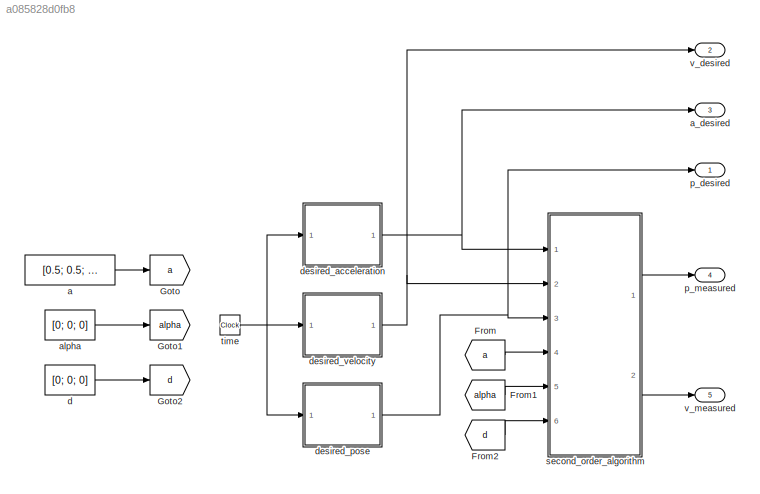
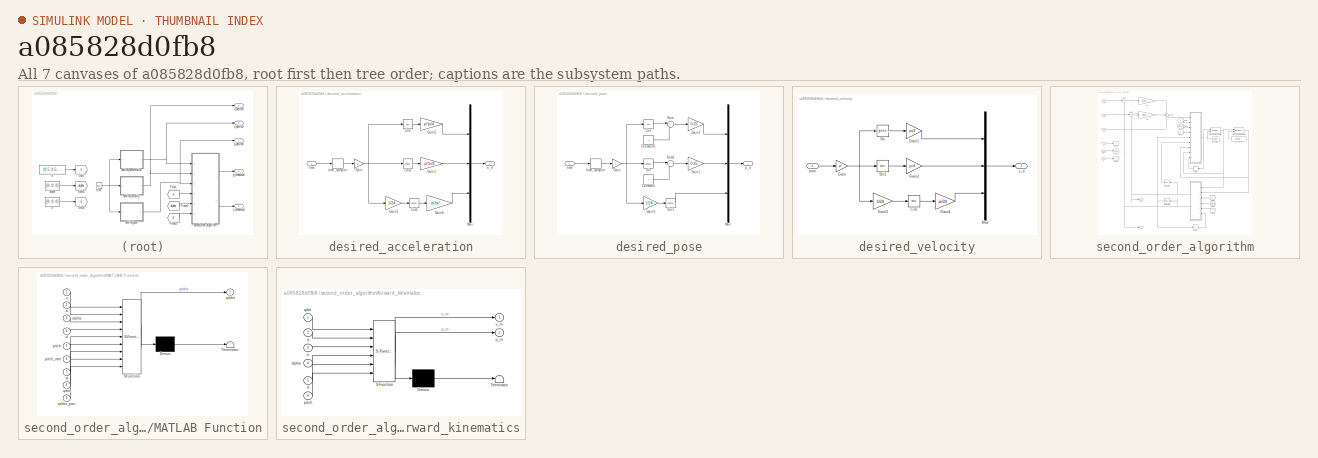
[diagram: thumbnail index - all 7 canvases of the model, root first then tree order]
MODEL slx_a085828d0fb8
KIND model
CONFIG AbsTol = auto
CONFIG EnableMultiTasking = off
CONFIG FixedStep = auto
CONFIG MaxStep = auto
CONFIG MinStep = auto
CONFIG RelTol = 1e-3
CONFIG SampleTimeConstraint = Unconstrained
CONFIG SolverName = VariableStepAuto
CONFIG StartTime = 0.0
CONFIG StopTime = 4
BLOCK [From] From
  GotoTag = a
BLOCK [From] From1
  GotoTag = alpha
BLOCK [From] From2
  GotoTag = d
BLOCK [Goto] Goto
  GotoTag = a
BLOCK [Goto] Goto1
  GotoTag = alpha
BLOCK [Goto] Goto2
  GotoTag = d
BLOCK [Constant] a
  Value = [0.5; 0.5; 0.5]
BLOCK [Outport] a_desired
  Port = 3
BLOCK [Constant] alpha
  Value = [0; 0; 0]
BLOCK [Constant] d
  Value = [0; 0; 0]
BLOCK [SubSystem] desired_acceleration
  Ports = [1, 1]
  RequestExecContextInheritance = off
BLOCK [Trigonometry] desired_acceleration/Cos
  Operator = cos
  Ports = [1, 1]
BLOCK [Trigonometry] desired_acceleration/Cos1
  Ports = [1, 1]
BLOCK [Trigonometry] desired_acceleration/Cos2
  Ports = [1, 1]
BLOCK [Gain] desired_acceleration/Gain
  Gain = pi
BLOCK [Gain] desired_acceleration/Gain1
  Gain = -pi*pi/4
BLOCK [Gain] desired_acceleration/Gain2
  Gain = pi*pi/4
BLOCK [Gain] desired_acceleration/Gain3
  Gain = 1/24
BLOCK [Gain] desired_acceleration/Gain6
  Gain = -pi*pi/576
BLOCK [Mux] desired_acceleration/Mux
  DisplayOption = bar
  Inputs = 3
  Ports = [3, 1]
BLOCK [Outport] desired_acceleration/a_d
BLOCK [Inport] desired_acceleration/time
BLOCK [ZeroOrderHold] desired_acceleration/time_sampler
  SampleTime = 1e-3
BLOCK [SubSystem] desired_pose
  Ports = [1, 1]
  RequestExecContextInheritance = off
BLOCK [Constant] desired_pose/Constant
  Value = 2
BLOCK [Constant] desired_pose/Constant1
BLOCK [Trigonometry] desired_pose/Cos
  Operator = cos
  Ports = [1, 1]
BLOCK [Gain] desired_pose/Gain
  Gain = pi
BLOCK [Gain] desired_pose/Gain1
  Gain = 0.25
BLOCK [Gain] desired_pose/Gain2
  Gain = 0.25
BLOCK [Gain] desired_pose/Gain3
  Gain = 1/24
BLOCK [Mux] desired_pose/Mux
  DisplayOption = bar
  Inputs = 3
  Ports = [3, 1]
BLOCK [Trigonometry] desired_pose/Sin
  Ports = [1, 1]
BLOCK [Trigonometry] desired_pose/Sin1
  Ports = [1, 1]
BLOCK [Sum] desired_pose/Sum
  Inputs = |-+
  Ports = [2, 1]
BLOCK [Sum] desired_pose/Sum1
  Inputs = |++
  Ports = [2, 1]
BLOCK [Outport] desired_pose/p_d
BLOCK [Inport] desired_pose/time
BLOCK [ZeroOrderHold] desired_pose/time_sampler
  SampleTime = 1e-3
BLOCK [SubSystem] desired_velocity
  Ports = [1, 1]
  RequestExecContextInheritance = off
BLOCK [Trigonometry] desired_velocity/Cos
  Operator = cos
  Ports = [1, 1]
BLOCK [Gain] desired_velocity/Gain
  Gain = pi
BLOCK [Gain] desired_velocity/Gain1
  Gain = pi/4
BLOCK [Gain] desired_velocity/Gain2
  Gain = pi/4
BLOCK [Gain] desired_velocity/Gain3
  Gain = 1/24
BLOCK [Gain] desired_velocity/Gain4
  Gain = pi/24
BLOCK [Mux] desired_velocity/Mux
  DisplayOption = bar
  Inputs = 3
  Ports = [3, 1]
BLOCK [Trigonometry] desired_velocity/Sin
  Ports = [1, 1]
BLOCK [Trigonometry] desired_velocity/Sin1
  Operator = cos
  Ports = [1, 1]
BLOCK [Inport] desired_velocity/time
BLOCK [Outport] desired_velocity/v_d
BLOCK [Outport] p_desired
BLOCK [Outport] p_measured
  Port = 4
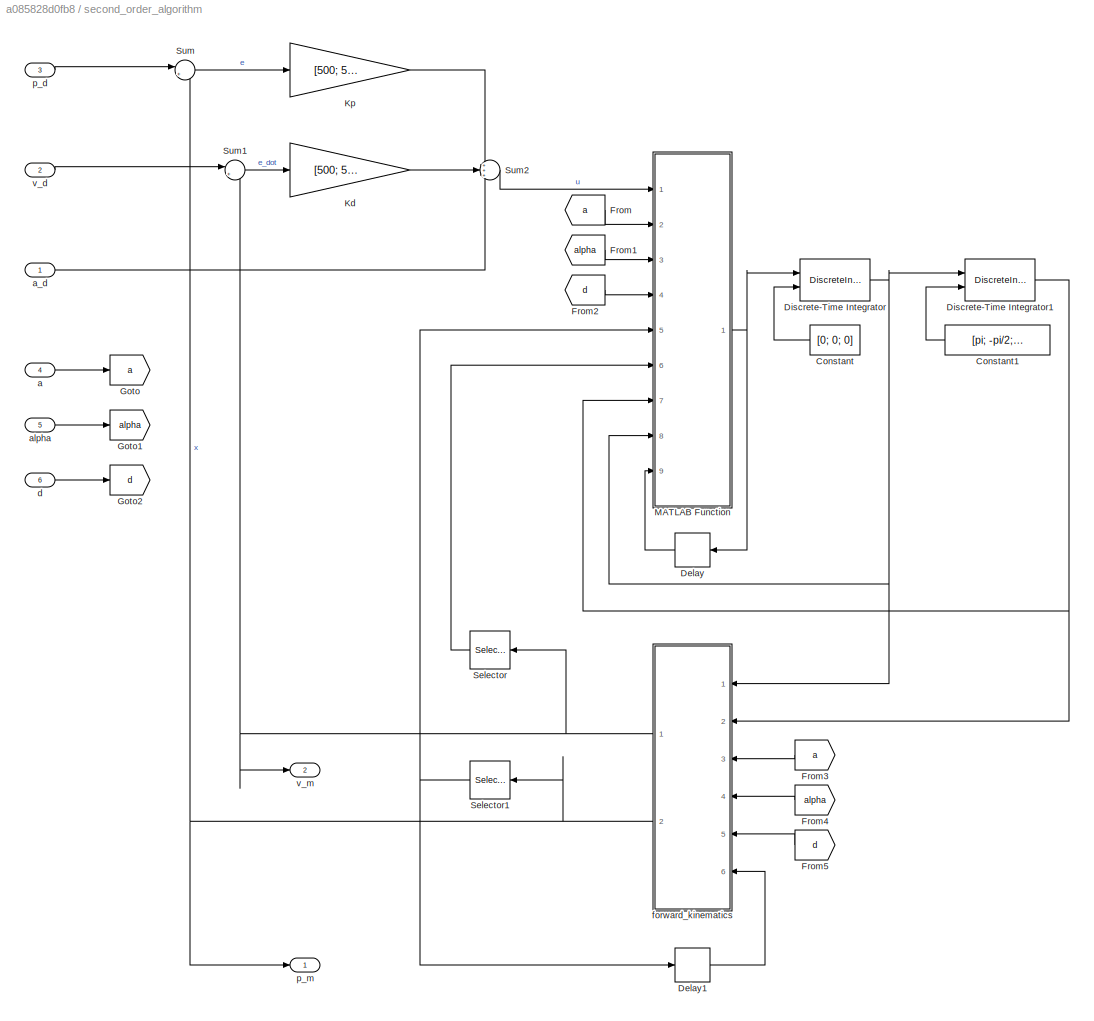
BLOCK [SubSystem] second_order_algorithm
  Ports = [6, 2]
  RequestExecContextInheritance = off
BLOCK [Constant] second_order_algorithm/Constant
  NameLocation = top
  Value = [0; 0; 0]
BLOCK [Constant] second_order_algorithm/Constant1
  NameLocation = top
  Value = [pi; -pi/2; -pi/2]
BLOCK [Delay] second_order_algorithm/Delay
  DelayLength = 1
  InputPortMap = u0
  NameLocation = top
  Ports = [1, 1]
BLOCK [Delay] second_order_algorithm/Delay1
  DelayLength = 1
  InputPortMap = u0
  NameLocation = top
  Ports = [1, 1]
BLOCK [DiscreteIntegrator] second_order_algorithm/Discrete-Time Integrator
  ICPrevOutput = DiscIntNeverNeededParam
  ICPrevScaledInput = DiscIntNeverNeededParam
  InitialConditionSetting = Auto
  InitialConditionSource = external
  Ports = [2, 1]
  SampleTime = 1e-3
BLOCK [DiscreteIntegrator] second_order_algorithm/Discrete-Time Integrator1
  ICPrevOutput = DiscIntNeverNeededParam
  ICPrevScaledInput = DiscIntNeverNeededParam
  InitialConditionSetting = Auto
  InitialConditionSource = external
  Ports = [2, 1]
  SampleTime = 1e-3
BLOCK [From] second_order_algorithm/From
  GotoTag = a
BLOCK [From] second_order_algorithm/From1
  GotoTag = alpha
BLOCK [From] second_order_algorithm/From2
  GotoTag = d
BLOCK [From] second_order_algorithm/From3
  GotoTag = a
  NameLocation = top
BLOCK [From] second_order_algorithm/From4
  GotoTag = alpha
  NameLocation = top
BLOCK [From] second_order_algorithm/From5
  GotoTag = d
  NameLocation = top
BLOCK [Goto] second_order_algorithm/Goto
  GotoTag = a
BLOCK [Goto] second_order_algorithm/Goto1
  GotoTag = alpha
BLOCK [Goto] second_order_algorithm/Goto2
  GotoTag = d
BLOCK [Gain] second_order_algorithm/Kd
  Gain = [500; 500; 500]
BLOCK [Gain] second_order_algorithm/Kp
  Gain = [500; 500; 500]
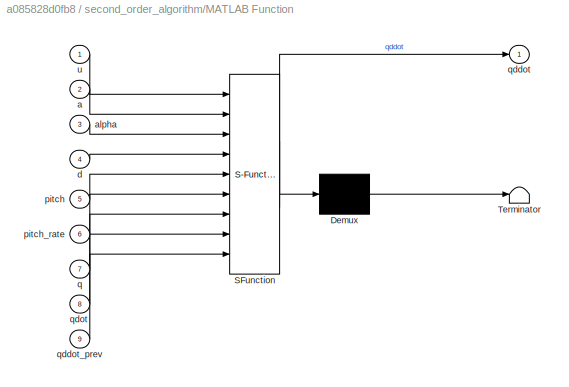
BLOCK [SubSystem] second_order_algorithm/MATLAB Function
  ErrorFcn = Stateflow.Translate.translate
  PermitHierarchicalResolution = ExplicitOnly
  Ports = [9, 1]
  RequestExecContextInheritance = off
  SFBlockType = MATLAB Function
  TreatAsAtomicUnit = on
BLOCK [Demux] second_order_algorithm/MATLAB Function/ Demux 
  Outputs = 1
  Ports = [1, 1]
BLOCK [S-Function] second_order_algorithm/MATLAB Function/ SFunction 
  EnableBusSupport = on
  FunctionName = sf_sfun
  PortCounts = [9 2]
  Ports = [9, 2]
  SFcnIsStateOwnerBlock = off
  SFunctionDeploymentMode = off
  Tag = Stateflow S-Function 5
BLOCK [Terminator] second_order_algorithm/MATLAB Function/ Terminator 
BLOCK [Inport] second_order_algorithm/MATLAB Function/a
  Port = 2
BLOCK [Inport] second_order_algorithm/MATLAB Function/alpha
  Port = 3
BLOCK [Inport] second_order_algorithm/MATLAB Function/d
  Port = 4
BLOCK [Inport] second_order_algorithm/MATLAB Function/pitch
  Port = 5
BLOCK [Inport] second_order_algorithm/MATLAB Function/pitch_rate
  Port = 6
BLOCK [Inport] second_order_algorithm/MATLAB Function/q
  Port = 7
BLOCK [Outport] second_order_algorithm/MATLAB Function/qddot
BLOCK [Inport] second_order_algorithm/MATLAB Function/qddot_prev
  Port = 9
BLOCK [Inport] second_order_algorithm/MATLAB Function/qdot
  Port = 8
BLOCK [Inport] second_order_algorithm/MATLAB Function/u
BLOCK [Selector] second_order_algorithm/Selector
  IndexOptions = Index vector (dialog)
  Indices = [3]
  InputPortWidth = 3
  NameLocation = top
  OutputSizes = 1
  Ports = [1, 1]
BLOCK [Selector] second_order_algorithm/Selector1
  IndexOptions = Index vector (dialog)
  Indices = [3]
  InputPortWidth = 3
  NameLocation = top
  OutputSizes = 1
  Ports = [1, 1]
BLOCK [Sum] second_order_algorithm/Sum
  Inputs = |+-
  Ports = [2, 1]
BLOCK [Sum] second_order_algorithm/Sum1
  Inputs = |+-
  Ports = [2, 1]
BLOCK [Sum] second_order_algorithm/Sum2
  Inputs = +++
  Ports = [3, 1]
BLOCK [Inport] second_order_algorithm/a
  Port = 4
BLOCK [Inport] second_order_algorithm/a_d
BLOCK [Inport] second_order_algorithm/alpha
  Port = 5
BLOCK [Inport] second_order_algorithm/d
  Port = 6
BLOCK [SubSystem] second_order_algorithm/forward_kinematics
  ErrorFcn = Stateflow.Translate.translate
  PermitHierarchicalResolution = ExplicitOnly
  Ports = [6, 2]
  RequestExecContextInheritance = off
  SFBlockType = MATLAB Function
  TreatAsAtomicUnit = on
BLOCK [Demux] second_order_algorithm/forward_kinematics/ Demux 
  Outputs = 1
  Ports = [1, 1]
BLOCK [S-Function] second_order_algorithm/forward_kinematics/ SFunction 
  EnableBusSupport = on
  FunctionName = sf_sfun
  PortCounts = [6 3]
  Ports = [6, 3]
  SFcnIsStateOwnerBlock = off
  SFunctionDeploymentMode = off
  Tag = Stateflow S-Function 1
BLOCK [Terminator] second_order_algorithm/forward_kinematics/ Terminator 
BLOCK [Inport] second_order_algorithm/forward_kinematics/a
  Port = 3
BLOCK [Inport] second_order_algorithm/forward_kinematics/alpha
  Port = 4
BLOCK [Inport] second_order_algorithm/forward_kinematics/d
  Port = 5
BLOCK [Outport] second_order_algorithm/forward_kinematics/p_m
  Port = 2
BLOCK [Inport] second_order_algorithm/forward_kinematics/pitch
  Port = 6
BLOCK [Inport] second_order_algorithm/forward_kinematics/q
  Port = 2
BLOCK [Inport] second_order_algorithm/forward_kinematics/qdot
BLOCK [Outport] second_order_algorithm/forward_kinematics/v_m
BLOCK [Inport] second_order_algorithm/p_d
  Port = 3
BLOCK [Outport] second_order_algorithm/p_m
BLOCK [Inport] second_order_algorithm/v_d
  Port = 2
BLOCK [Outport] second_order_algorithm/v_m
  Port = 2
BLOCK [Clock] time
BLOCK [Outport] v_desired
  Port = 2
BLOCK [Outport] v_measured
  Port = 5
LINE From1:1 -> second_order_algorithm:5
LINE From2:1 -> second_order_algorithm:6
LINE From:1 -> second_order_algorithm:4
LINE a:1 -> Goto:1
LINE alpha:1 -> Goto1:1
LINE d:1 -> Goto2:1
LINE desired_acceleration/Cos1:1 -> desired_acceleration/Gain1:1
LINE desired_acceleration/Cos2:1 -> desired_acceleration/Gain6:1
LINE desired_acceleration/Cos:1 -> desired_acceleration/Gain2:1
LINE desired_acceleration/Gain1:1 -> desired_acceleration/Mux:2
LINE desired_acceleration/Gain2:1 -> desired_acceleration/Mux:1
LINE desired_acceleration/Gain3:1 -> desired_acceleration/Cos2:1
LINE desired_acceleration/Gain6:1 -> desired_acceleration/Mux:3
NET desired_acceleration/Gain:1 -> desired_acceleration/Cos1:1, desired_acceleration/Cos:1, desired_acceleration/Gain3:1
LINE desired_acceleration/Mux:1 -> desired_acceleration/a_d:1
LINE desired_acceleration/time:1 -> desired_acceleration/time_sampler:1
LINE desired_acceleration/time_sampler:1 -> desired_acceleration/Gain:1
NET desired_acceleration:1 -> a_desired:1, second_order_algorithm:1
LINE desired_pose/Constant1:1 -> desired_pose/Sum:2
LINE desired_pose/Constant:1 -> desired_pose/Sum1:2
LINE desired_pose/Cos:1 -> desired_pose/Sum:1
LINE desired_pose/Gain1:1 -> desired_pose/Mux:2
LINE desired_pose/Gain2:1 -> desired_pose/Mux:1
LINE desired_pose/Gain3:1 -> desired_pose/Sin1:1
NET desired_pose/Gain:1 -> desired_pose/Cos:1, desired_pose/Gain3:1, desired_pose/Sin:1
LINE desired_pose/Mux:1 -> desired_pose/p_d:1
LINE desired_pose/Sin1:1 -> desired_pose/Mux:3
LINE desired_pose/Sin:1 -> desired_pose/Sum1:1
LINE desired_pose/Sum1:1 -> desired_pose/Gain1:1
LINE desired_pose/Sum:1 -> desired_pose/Gain2:1
LINE desired_pose/time:1 -> desired_pose/time_sampler:1
LINE desired_pose/time_sampler:1 -> desired_pose/Gain:1
NET desired_pose:1 -> p_desired:1, second_order_algorithm:3
LINE desired_velocity/Cos:1 -> desired_velocity/Gain4:1
LINE desired_velocity/Gain1:1 -> desired_velocity/Mux:1
LINE desired_velocity/Gain2:1 -> desired_velocity/Mux:2
LINE desired_velocity/Gain3:1 -> desired_velocity/Cos:1
LINE desired_velocity/Gain4:1 -> desired_velocity/Mux:3
NET desired_velocity/Gain:1 -> desired_velocity/Gain3:1, desired_velocity/Sin1:1, desired_velocity/Sin:1
LINE desired_velocity/Mux:1 -> desired_velocity/v_d:1
LINE desired_velocity/Sin1:1 -> desired_velocity/Gain2:1
LINE desired_velocity/Sin:1 -> desired_velocity/Gain1:1
LINE desired_velocity/time:1 -> desired_velocity/Gain:1
NET desired_velocity:1 -> second_order_algorithm:2, v_desired:1
LINE second_order_algorithm/Constant1:1 -> second_order_algorithm/Discrete-Time Integrator1:2
LINE second_order_algorithm/Constant:1 -> second_order_algorithm/Discrete-Time Integrator:2
LINE second_order_algorithm/Delay1:1 -> second_order_algorithm/forward_kinematics:6
LINE second_order_algorithm/Delay:1 -> second_order_algorithm/MATLAB Function:9
NET second_order_algorithm/Discrete-Time Integrator1:1 -> second_order_algorithm/MATLAB Function:7, second_order_algorithm/forward_kinematics:2
NET second_order_algorithm/Discrete-Time Integrator:1 -> second_order_algorithm/Discrete-Time Integrator1:1, second_order_algorithm/MATLAB Function:8, second_order_algorithm/forward_kinematics:1
LINE second_order_algorithm/From1:1 -> second_order_algorithm/MATLAB Function:3
LINE second_order_algorithm/From2:1 -> second_order_algorithm/MATLAB Function:4
LINE second_order_algorithm/From3:1 -> second_order_algorithm/forward_kinematics:3
LINE second_order_algorithm/From4:1 -> second_order_algorithm/forward_kinematics:4
LINE second_order_algorithm/From5:1 -> second_order_algorithm/forward_kinematics:5
LINE second_order_algorithm/From:1 -> second_order_algorithm/MATLAB Function:2
LINE second_order_algorithm/Kd:1 -> second_order_algorithm/Sum2:2
LINE second_order_algorithm/Kp:1 -> second_order_algorithm/Sum2:1
NET second_order_algorithm/MATLAB Function:1 -> second_order_algorithm/Delay:1, second_order_algorithm/Discrete-Time Integrator:1
NET second_order_algorithm/Selector1:1 -> second_order_algorithm/Delay1:1, second_order_algorithm/MATLAB Function:5
LINE second_order_algorithm/Selector:1 -> second_order_algorithm/MATLAB Function:6
LINE second_order_algorithm/Sum1:1 -> second_order_algorithm/Kd:1
LINE second_order_algorithm/Sum2:1 -> second_order_algorithm/MATLAB Function:1
LINE second_order_algorithm/Sum:1 -> second_order_algorithm/Kp:1
LINE second_order_algorithm/a:1 -> second_order_algorithm/Goto:1
LINE second_order_algorithm/a_d:1 -> second_order_algorithm/Sum2:3
LINE second_order_algorithm/alpha:1 -> second_order_algorithm/Goto1:1
LINE second_order_algorithm/d:1 -> second_order_algorithm/Goto2:1
NET second_order_algorithm/forward_kinematics:1 -> second_order_algorithm/Selector:1, second_order_algorithm/Sum1:2, second_order_algorithm/v_m:1
NET second_order_algorithm/forward_kinematics:2 -> second_order_algorithm/Selector1:1, second_order_algorithm/Sum:2, second_order_algorithm/p_m:1
LINE second_order_algorithm/p_d:1 -> second_order_algorithm/Sum:1
LINE second_order_algorithm/v_d:1 -> second_order_algorithm/Sum1:1
LINE second_order_algorithm:1 -> p_measured:1
LINE second_order_algorithm:2 -> v_measured:1
NET time:1 -> desired_acceleration:1, desired_pose:1, desired_velocity:1
note: NET lines group one-source signal fan-out (src -> all destinations, sorted); 1:1 wires keep LINE
CHART second_order_algorithm/forward_kinematics states=1 transitions=1
  STATE_LABEL 'eML_blk_kernel()'
  STATE_LABEL "SCRIPT:\nfunction [v_m, p_m] = fcn(qdot, q, a, alpha, d, pitch)\njoint_type = ['r'; 'r'; 'r'];\n\ns = forward_kinematics(joint_type, q, a, alpha, d);\n\nJ = s.analytical_jacobian(0, pitch);\nJ_min = [J(1:2,:); J(6,:)];\nv_m = J_min*qdot;\n\nx = s.end_effector_pose();\np_m = [x(1:2,:); x(6,:)];\n"
CHART second_order_algorithm/MATLAB Function states=1 transitions=1
  STATE_LABEL 'eML_blk_kernel()'
  STATE_LABEL "SCRIPT:\nfunction qddot = fcn(u, a, alpha, d, pitch, pitch_rate, q, qdot, qddot_prev)\n\njoint_type = ['r'; 'r'; 'r'];\n\ns = forward_kinematics(joint_type, q, a, alpha, d);\n\nJ = s.analytical_jacobian(0, pitch);\n\nJ_min = [J(1:2,:); J(6,:)];\n\nJ_inv = (transpose(J_min)/(J_min*transpose(J_min)));\n\n[a1, a2, a3] = split_into_three(a);\n[q1, q2, q3] = split_into_three(q);\n[qdot1, qdot2, qdot3] = split_into_th...<+318ch>"
CHART  states=0 transitions=0
CHART  states=0 transitions=0
